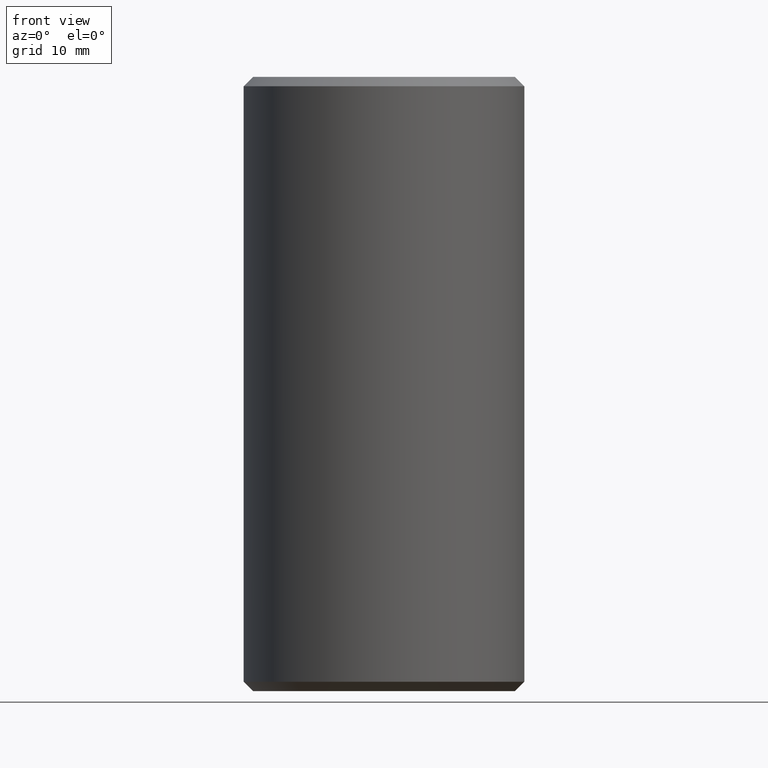
[diagram: clean part render]
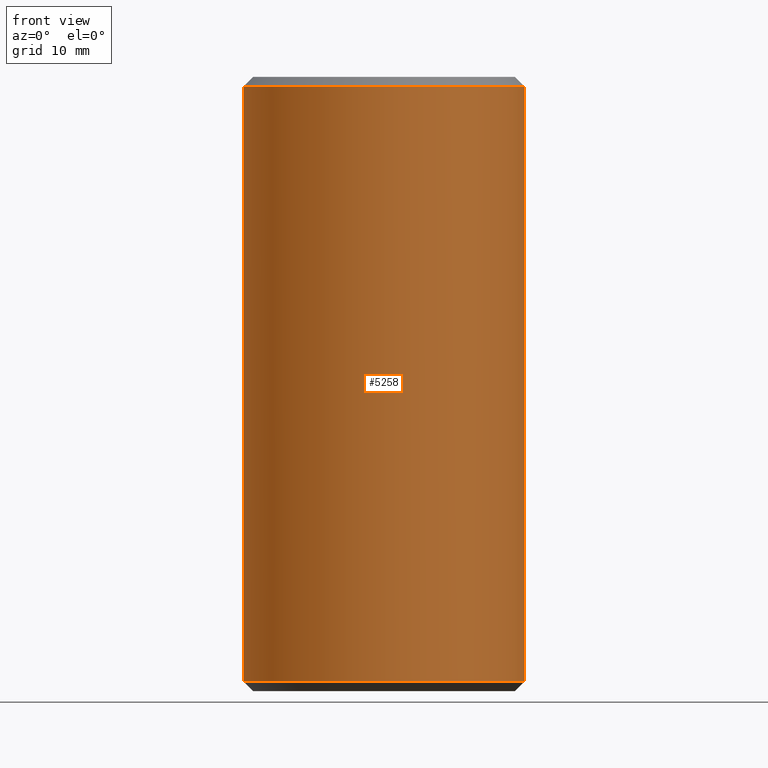
[diagram: same view with one face highlighted and labeled with its STEP entity id]
A machine part, front view. The second image highlights one B-rep face of the part: STEP entity #5258.
In plain terms, the highlighted cylindrical surface (partial cylindrical patch) has radius 14.85 mm, axis along (-0, -0, -1).
Its self-contained STEP definition (entity closure, byte-faithful):
#16 = DIRECTION ( 'NONE',  ( 1.000000000000000000, 0.0000000000000000000, 0.0000000000000000000 ) ) ;
#26 = FACE_OUTER_BOUND ( 'NONE', #9076, .T. ) ;
#162 = VERTEX_POINT ( 'NONE', #7058 ) ;
#840 = CARTESIAN_POINT ( 'NONE',  ( 0.0000000000000000000, 0.0000000000000000000, -31.50000000000000000 ) ) ;
#1771 = ORIENTED_EDGE ( 'NONE', *, *, #6466, .T. ) ;
#1967 = VECTOR ( 'NONE', #2307, 1000.000000000000000 ) ;
#2228 = CARTESIAN_POINT ( 'NONE',  ( -14.85000000000000100, 0.0000000000000000000, 31.49999999999999300 ) ) ;
#2307 = DIRECTION ( 'NONE',  ( -0.0000000000000000000, -0.0000000000000000000, -1.000000000000000000 ) ) ;
#2627 = EDGE_CURVE ( 'NONE', #3778, #6930, #5460, .T. ) ;
#2822 = AXIS2_PLACEMENT_3D ( 'NONE', #4761, #5883, #16 ) ;
#2985 = CARTESIAN_POINT ( 'NONE',  ( 0.0000000000000000000, 0.0000000000000000000, 32.50000000000000000 ) ) ;
#3039 = CARTESIAN_POINT ( 'NONE',  ( 14.85000000000000100, 1.818600496733819900E-015, 32.50000000000000000 ) ) ;
#3050 = LINE ( 'NONE', #3039, #4275 ) ;
#3778 = VERTEX_POINT ( 'NONE', #6770 ) ;
#3871 = ORIENTED_EDGE ( 'NONE', *, *, #7703, .F. ) ;
#4014 = DIRECTION ( 'NONE',  ( -0.0000000000000000000, -0.0000000000000000000, -1.000000000000000000 ) ) ;
#4065 = AXIS2_PLACEMENT_3D ( 'NONE', #2985, #9706, #5900 ) ;
#4275 = VECTOR ( 'NONE', #4014, 1000.000000000000000 ) ;
#4761 = CARTESIAN_POINT ( 'NONE',  ( 0.0000000000000000000, 0.0000000000000000000, 31.49999999999999300 ) ) ;
#4995 = LINE ( 'NONE', #7098, #1967 ) ;
#5258 = ADVANCED_FACE ( 'NONE', ( #26 ), #5862, .T. ) ;
#5460 = CIRCLE ( 'NONE', #2822, 14.85000000000000100 ) ;
#5862 = CYLINDRICAL_SURFACE ( 'NONE', #4065, 14.85000000000000100 ) ;
#5883 = DIRECTION ( 'NONE',  ( 0.0000000000000000000, 0.0000000000000000000, -1.000000000000000000 ) ) ;
#5900 = DIRECTION ( 'NONE',  ( -1.000000000000000000, 0.0000000000000000000, 0.0000000000000000000 ) ) ;
#6466 = EDGE_CURVE ( 'NONE', #162, #9610, #10430, .T. ) ;
#6770 = CARTESIAN_POINT ( 'NONE',  ( 14.85000000000000100, 1.818600496733819900E-015, 31.49999999999999300 ) ) ;
#6930 = VERTEX_POINT ( 'NONE', #2228 ) ;
#7058 = CARTESIAN_POINT ( 'NONE',  ( -14.85000000000000100, 0.0000000000000000000, -31.50000000000000000 ) ) ;
#7098 = CARTESIAN_POINT ( 'NONE',  ( -14.85000000000000100, 0.0000000000000000000, 32.50000000000000000 ) ) ;
#7337 = ORIENTED_EDGE ( 'NONE', *, *, #2627, .T. ) ;
#7450 = AXIS2_PLACEMENT_3D ( 'NONE', #840, #9457, #12235 ) ;
#7703 = EDGE_CURVE ( 'NONE', #3778, #9610, #3050, .T. ) ;
#9076 = EDGE_LOOP ( 'NONE', ( #3871, #7337, #12281, #1771 ) ) ;
#9457 = DIRECTION ( 'NONE',  ( -0.0000000000000000000, -0.0000000000000000000, 1.000000000000000000 ) ) ;
#9610 = VERTEX_POINT ( 'NONE', #10591 ) ;
#9706 = DIRECTION ( 'NONE',  ( -0.0000000000000000000, -0.0000000000000000000, -1.000000000000000000 ) ) ;
#10430 = CIRCLE ( 'NONE', #7450, 14.85000000000000100 ) ;
#10591 = CARTESIAN_POINT ( 'NONE',  ( 14.85000000000000100, 1.818600496733819900E-015, -31.50000000000000000 ) ) ;
#11004 = EDGE_CURVE ( 'NONE', #6930, #162, #4995, .T. ) ;
#12235 = DIRECTION ( 'NONE',  ( 1.000000000000000000, 0.0000000000000000000, 0.0000000000000000000 ) ) ;
#12281 = ORIENTED_EDGE ( 'NONE', *, *, #11004, .T. ) ;